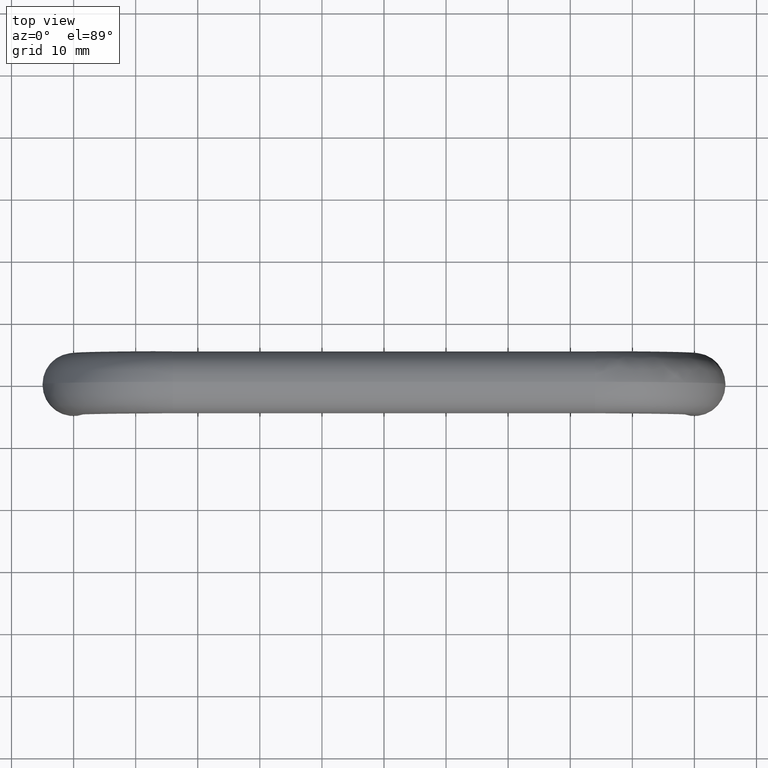
[diagram: clean part render]
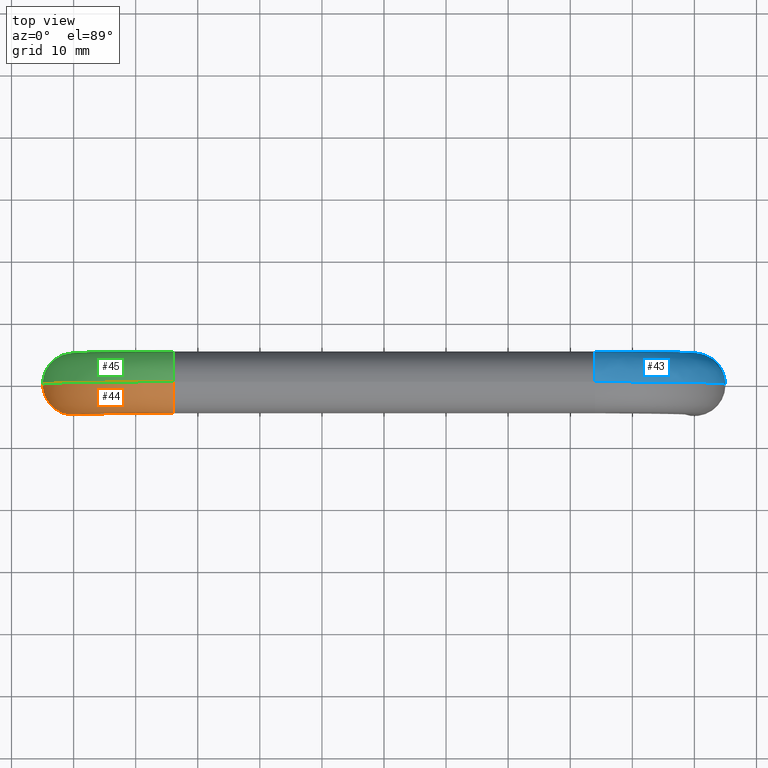
[diagram: same view with three faces highlighted in distinct colors, each labeled with its STEP entity id]
A machine part, top view with three faces highlighted in distinct colors.
Their STEP definitions:

[orange] entity #44 — the highlighted face is a freeform B-spline surface patch.
#44=ADVANCED_FACE('',(#106),#105,.T.);
#105=( BOUNDED_SURFACE() B_SPLINE_SURFACE( 3,3,((#417,#418,#419,#420,#421,#422,#423),(#424,#425,#426,#427,#428,#429,#430),(#431,#432,#433,#434,#435,#436,#437),(#438,#439,#440,#441,#442,#443,#444),(#445,#446,#447,#448,#449,#450,#451),(#452,#453,#454,#455,#456,#457,#458),(#459,#460,#461,#462,#463,#464,#465)), .UNSPECIFIED.,.F.,.F.,.F.) B_SPLINE_SURFACE_WITH_KNOTS((4,1,1,1,4),(4,1,1,1,4),(0.00000000000E+00,2.50000000000E-01,5.00000000000E-01,7.50000000000E-01,1.00000000000E+00),(0.00000000000E+00,2.49559115838E-01,5.00000000000E-01,7.50440884162E-01,1.00000000000E+00), .UNSPECIFIED. ) GEOMETRIC_REPRESENTATION_ITEM() RATIONAL_B_SPLINE_SURFACE(((1.00000000000E+00,1.00000000000E+00,1.00000000000E+00,1.00000000000E+00,1.00000000000E+00,1.00000000000E+00,1.00000000000E+00),(1.00000000000E+00,1.00000000000E+00,1.00000000000E+00,1.00000000000E+00,1.00000000000E+00,1.00000000000E+00,1.00000000000E+00),(1.00000000000E+00,1.00000000000E+00,1.00000000000E+00,1.00000000000E+00,1.00000000000E+00,1.00000000000E+00,1.00000000000E+00),(1.00000000000E+00,1.00000000000E+00,1.00000000000E+00,1.00000000000E+00,1.00000000000E+00,1.00000000000E+00,1.00000000000E+00),(1.00000000000E+00,1.00000000000E+00,1.00000000000E+00,1.00000000000E+00,1.00000000000E+00,1.00000000000E+00,1.00000000000E+00),(1.00000000000E+00,1.00000000000E+00,1.00000000000E+00,1.00000000000E+00,1.00000000000E+00,1.00000000000E+00,1.00000000000E+00),(1.00000000000E+00,1.00000000000E+00,1.00000000000E+00,1.00000000000E+00,1.00000000000E+00,1.00000000000E+00,1.00000000000E+00))) REPRESENTATION_ITEM('') SURFACE() );
#106=FACE_OUTER_BOUND('',#466,.T.);
#417=CARTESIAN_POINT('',(-3.39999999999E+01,-9.33703686742E-11,-4.70222971671E-10));
#418=CARTESIAN_POINT('',(-3.54373574487E+01,-9.33703686742E-11,-4.90093831615E-10));
#419=CARTESIAN_POINT('',(-3.83163256839E+01,-9.33703686742E-11,-5.71651279916E-01));
#420=CARTESIAN_POINT('',(-4.19814511429E+01,-9.33703686742E-11,-3.01854885760E+00));
#421=CARTESIAN_POINT('',(-4.44283487205E+01,-9.33703686742E-11,-6.68367431659E+00));
#422=CARTESIAN_POINT('',(-4.49999999998E+01,-9.33703686742E-11,-9.56264255178E+00));
#423=CARTESIAN_POINT('',(-4.49999999998E+01,-9.33703686742E-11,-1.10000000006E+01));
#424=CARTESIAN_POINT('',(-3.39999999999E+01,-1.30817095284E+00,-6.52270761371E-03));
#425=CARTESIAN_POINT('',(-3.54586265477E+01,-1.30817095284E+00,-6.52270763387E-03));
#426=CARTESIAN_POINT('',(-3.83034576745E+01,-1.30817095284E+00,-5.78626257499E-01));
#427=CARTESIAN_POINT('',(-4.19794981955E+01,-1.30817095284E+00,-3.02050180500E+00));
#428=CARTESIAN_POINT('',(-4.44213737429E+01,-1.30817095284E+00,-6.69654232604E+00));
#429=CARTESIAN_POINT('',(-4.49934772927E+01,-1.30817095284E+00,-9.54137345285E+00));
#430=CARTESIAN_POINT('',(-4.49934772927E+01,-1.30817095284E+00,-1.10000000006E+01));
#431=CARTESIAN_POINT('',(-3.39999999999E+01,-3.91898719537E+00,1.08115145070E+00));
#432=CARTESIAN_POINT('',(-3.56289311832E+01,-3.91898719537E+00,1.08115145067E+00));
#433=CARTESIAN_POINT('',(-3.87171220668E+01,-3.91898719538E+00,4.51515394468E-01));
#434=CARTESIAN_POINT('',(-4.27722409624E+01,-3.91898719538E+00,-2.22775903812E+00));
#435=CARTESIAN_POINT('',(-4.54515153948E+01,-3.91898719537E+00,-6.28287793375E+00));
#436=CARTESIAN_POINT('',(-4.60811514510E+01,-3.91898719537E+00,-9.37106881736E+00));
#437=CARTESIAN_POINT('',(-4.60811514510E+01,-3.91898719537E+00,-1.10000000006E+01));
#438=CARTESIAN_POINT('',(-3.40000000000E+01,-5.54551769882E+00,4.99999999953E+00));
#439=CARTESIAN_POINT('',(-3.60907017437E+01,-5.54551769882E+00,4.99999999950E+00));
#440=CARTESIAN_POINT('',(-4.02782919040E+01,-5.54551769882E+00,4.16850722942E+00));
#441=CARTESIAN_POINT('',(-4.56093834806E+01,-5.54551769882E+00,6.09383480059E-01));
#442=CARTESIAN_POINT('',(-4.91685072299E+01,-5.54551769882E+00,-4.72170809666E+00));
#443=CARTESIAN_POINT('',(-4.99999999998E+01,-5.54551769882E+00,-8.90929825697E+00));
#444=CARTESIAN_POINT('',(-4.99999999998E+01,-5.54551769882E+00,-1.10000000007E+01));
#445=CARTESIAN_POINT('',(-3.40000000001E+01,-3.91898719537E+00,8.91884854836E+00));
#446=CARTESIAN_POINT('',(-3.65524723043E+01,-3.91898719537E+00,8.91884854833E+00));
#447=CARTESIAN_POINT('',(-4.18394617412E+01,-3.91898719538E+00,7.88549906438E+00));
#448=CARTESIAN_POINT('',(-4.84465259989E+01,-3.91898719538E+00,3.44652599824E+00));
#449=CARTESIAN_POINT('',(-5.28854990649E+01,-3.91898719537E+00,-3.16053825958E+00));
#450=CARTESIAN_POINT('',(-5.39188485487E+01,-3.91898719537E+00,-8.44752769657E+00));
#451=CARTESIAN_POINT('',(-5.39188485486E+01,-3.91898719537E+00,-1.10000000008E+01));
#452=CARTESIAN_POINT('',(-3.40000000001E+01,-1.30817095284E+00,1.00065227067E+01));
#453=CARTESIAN_POINT('',(-3.67227769398E+01,-1.30817095284E+00,1.00065227066E+01));
#454=CARTESIAN_POINT('',(-4.22531261336E+01,-1.30817095284E+00,8.91564071635E+00));
#455=CARTESIAN_POINT('',(-4.92392687658E+01,-1.30817095284E+00,4.23926876512E+00));
#456=CARTESIAN_POINT('',(-5.39156407169E+01,-1.30817095284E+00,-2.74687386729E+00));
#457=CARTESIAN_POINT('',(-5.50065227070E+01,-1.30817095284E+00,-8.27722306109E+00));
#458=CARTESIAN_POINT('',(-5.50065227069E+01,-1.30817095284E+00,-1.10000000008E+01));
#459=CARTESIAN_POINT('',(-3.40000000001E+01,-9.33697563710E-11,9.99999999953E+00));
#460=CARTESIAN_POINT('',(-3.67440460388E+01,-9.33697563710E-11,9.99999999949E+00));
#461=CARTESIAN_POINT('',(-4.22402581241E+01,-9.33697563710E-11,8.90866573877E+00));
#462=CARTESIAN_POINT('',(-4.92373158184E+01,-9.33697563710E-11,4.23731581772E+00));
#463=CARTESIAN_POINT('',(-5.39086657393E+01,-9.33697563710E-11,-2.75974187674E+00));
#464=CARTESIAN_POINT('',(-5.49999999998E+01,-9.33697563710E-11,-8.25595396215E+00));
#465=CARTESIAN_POINT('',(-5.49999999998E+01,-9.33697563710E-11,-1.10000000008E+01));
#466=EDGE_LOOP('',(#646,#647,#648,#649));
#646=ORIENTED_EDGE('',*,*,#736,.F.);
#647=ORIENTED_EDGE('',*,*,#737,.F.);
#648=ORIENTED_EDGE('',*,*,#738,.F.);
#649=ORIENTED_EDGE('',*,*,#739,.T.);
#736=EDGE_CURVE('',#852,#853,#854,.T.);
#737=EDGE_CURVE('',#860,#852,#861,.T.);
#738=EDGE_CURVE('',#867,#860,#868,.T.);
#739=EDGE_CURVE('',#867,#853,#874,.T.);
#852=VERTEX_POINT('',#1135);
#853=VERTEX_POINT('',#1136);
#854=CIRCLE('',#1140,5.00000000000E+00);
#860=VERTEX_POINT('',#1141);
#861=CIRCLE('',#1145,1.10000000000E+01);
#867=VERTEX_POINT('',#1146);
#868=CIRCLE('',#1150,5.00000000000E+00);
#874=(BOUNDED_CURVE() B_SPLINE_CURVE(3,(#1151,#1152,#1153,#1154,#1155,#1156,#1157,#1158,#1159),.UNSPECIFIED.,.F.,.F.) B_SPLINE_CURVE_WITH_KNOTS((4,1,1,1,1,1,4),(3.14159265359E+00,3.41886853007E+00,3.64992617489E+00,3.92699081698E+00,4.20405545908E+00,4.43511310390E+00,4.71238898038E+00),.UNSPECIFIED.) CURVE() GEOMETRIC_REPRESENTATION_ITEM() RATIONAL_B_SPLINE_CURVE((1.00000000000E+00,1.00000000000E+00,1.00000000000E+00,1.00000000000E+00,1.00000000000E+00,1.00000000000E+00,1.00000000000E+00,1.00000000000E+00,1.00000000000E+00)) REPRESENTATION_ITEM('') );
#1135=CARTESIAN_POINT('',(-4.49999999998E+01,-9.33650194194E-11,-1.10000000006E+01));
#1136=CARTESIAN_POINT('',(-5.49999999998E+01,-9.33654195623E-11,-1.10000000008E+01));
#1137=CARTESIAN_POINT('',(-4.99999999998E+01,-9.33654195623E-11,-1.10000000007E+01));
#1138=DIRECTION('',(1.38243194669E-11,3.88202274091E-39,-1.00000000000E+00));
#1139=DIRECTION('',(-1.00000000000E+00,-8.00285799997E-17,-1.38243194669E-11));
#1140=AXIS2_PLACEMENT_3D('',#1137,#1138,#1139);
#1141=CARTESIAN_POINT('',(-3.39999999999E+01,-9.33697563710E-11,-4.70225636207E-10));
#1142=CARTESIAN_POINT('',(-3.39999999998E+01,-9.33703686742E-11,-1.10000000005E+01));
#1143=DIRECTION('',(-3.24869965086E-38,-1.00000000000E+00,2.34994492202E-27));
#1144=DIRECTION('',(1.35287336888E-11,-2.34994492202E-27,-1.00000000000E+00));
#1145=AXIS2_PLACEMENT_3D('',#1142,#1143,#1144);
#1146=CARTESIAN_POINT('',(-3.40000000001E+01,-9.33694603115E-11,9.99999999953E+00));
#1147=CARTESIAN_POINT('',(-3.40000000000E+01,-9.33697563710E-11,4.99999999953E+00));
#1148=DIRECTION('',(1.00000000000E+00,2.87219101558E-39,1.38243194669E-11));
#1149=DIRECTION('',(1.38243194669E-11,-5.92118999992E-17,-1.00000000000E+00));
#1150=AXIS2_PLACEMENT_3D('',#1147,#1148,#1149);
#1151=CARTESIAN_POINT('',(-3.40000000000E+01,-9.33697563710E-11,9.99999999953E+00));
#1152=CARTESIAN_POINT('',(-3.59365056684E+01,-9.33697563710E-11,1.00006883906E+01));
#1153=CARTESIAN_POINT('',(-3.94921764615E+01,-9.33697563710E-11,9.50466741249E+00));
#1154=CARTESIAN_POINT('',(-4.46060632109E+01,-9.33697563710E-11,7.38852365608E+00));
#1155=CARTESIAN_POINT('',(-4.90411501763E+01,-9.33697563710E-11,4.04115017577E+00));
#1156=CARTESIAN_POINT('',(-5.23885236566E+01,-9.33697563710E-11,-3.93936789793E-01));
#1157=CARTESIAN_POINT('',(-5.45046674129E+01,-9.33697563710E-11,-5.50782353923E+00));
#1158=CARTESIAN_POINT('',(-5.50006883909E+01,-9.33697563710E-11,-9.06349433235E+00));
#1159=CARTESIAN_POINT('',(-5.49999999998E+01,-9.33697563710E-11,-1.10000000007E+01));

[blue] entity #43 — the highlighted face is a freeform B-spline surface patch.
#43=ADVANCED_FACE('',(#96),#95,.T.);
#95=( BOUNDED_SURFACE() B_SPLINE_SURFACE( 3,3,((#367,#368,#369,#370,#371,#372,#373),(#374,#375,#376,#377,#378,#379,#380),(#381,#382,#383,#384,#385,#386,#387),(#388,#389,#390,#391,#392,#393,#394),(#395,#396,#397,#398,#399,#400,#401),(#402,#403,#404,#405,#406,#407,#408),(#409,#410,#411,#412,#413,#414,#415)), .UNSPECIFIED.,.F.,.F.,.F.) B_SPLINE_SURFACE_WITH_KNOTS((4,1,1,1,4),(4,1,1,1,4),(0.00000000000E+00,2.50000000000E-01,5.00000000000E-01,7.50000000000E-01,1.00000000000E+00),(0.00000000000E+00,2.49559115838E-01,5.00000000000E-01,7.50440884162E-01,1.00000000000E+00), .UNSPECIFIED. ) GEOMETRIC_REPRESENTATION_ITEM() RATIONAL_B_SPLINE_SURFACE(((1.00000000000E+00,1.00000000000E+00,1.00000000000E+00,1.00000000000E+00,1.00000000000E+00,1.00000000000E+00,1.00000000000E+00),(1.00000000000E+00,1.00000000000E+00,1.00000000000E+00,1.00000000000E+00,1.00000000000E+00,1.00000000000E+00,1.00000000000E+00),(1.00000000000E+00,1.00000000000E+00,1.00000000000E+00,1.00000000000E+00,1.00000000000E+00,1.00000000000E+00,1.00000000000E+00),(1.00000000000E+00,1.00000000000E+00,1.00000000000E+00,1.00000000000E+00,1.00000000000E+00,1.00000000000E+00,1.00000000000E+00),(1.00000000000E+00,1.00000000000E+00,1.00000000000E+00,1.00000000000E+00,1.00000000000E+00,1.00000000000E+00,1.00000000000E+00),(1.00000000000E+00,1.00000000000E+00,1.00000000000E+00,1.00000000000E+00,1.00000000000E+00,1.00000000000E+00,1.00000000000E+00),(1.00000000000E+00,1.00000000000E+00,1.00000000000E+00,1.00000000000E+00,1.00000000000E+00,1.00000000000E+00,1.00000000000E+00))) REPRESENTATION_ITEM('') SURFACE() );
#96=FACE_OUTER_BOUND('',#416,.T.);
#367=CARTESIAN_POINT('',(5.49999999999E+01,-9.33697563710E-11,-1.10000000000E+01));
#368=CARTESIAN_POINT('',(5.49999999999E+01,-9.33697563710E-11,-8.25595396135E+00));
#369=CARTESIAN_POINT('',(5.39086657393E+01,-9.33697563710E-11,-2.75974187597E+00));
#370=CARTESIAN_POINT('',(4.92373158183E+01,-9.33697563710E-11,4.23731581841E+00));
#371=CARTESIAN_POINT('',(4.22402581239E+01,-9.33697563710E-11,8.90866573935E+00));
#372=CARTESIAN_POINT('',(3.67440460385E+01,-9.33697563710E-11,1.00000000000E+01));
#373=CARTESIAN_POINT('',(3.39999999999E+01,-9.33697563710E-11,1.00000000000E+01));
#374=CARTESIAN_POINT('',(5.50065227070E+01,1.30817095265E+00,-1.10000000000E+01));
#375=CARTESIAN_POINT('',(5.50065227070E+01,1.30817095265E+00,-8.27722306029E+00));
#376=CARTESIAN_POINT('',(5.39156407168E+01,1.30817095265E+00,-2.74687386652E+00));
#377=CARTESIAN_POINT('',(4.92392687657E+01,1.30817095265E+00,4.23926876581E+00));
#378=CARTESIAN_POINT('',(4.22531261334E+01,1.30817095265E+00,8.91564071694E+00));
#379=CARTESIAN_POINT('',(3.67227769396E+01,1.30817095265E+00,1.00065227071E+01));
#380=CARTESIAN_POINT('',(3.39999999999E+01,1.30817095265E+00,1.00065227071E+01));
#381=CARTESIAN_POINT('',(5.39188485487E+01,3.91898719519E+00,-1.10000000000E+01));
#382=CARTESIAN_POINT('',(5.39188485487E+01,3.91898719519E+00,-8.44752769579E+00));
#383=CARTESIAN_POINT('',(5.28854990649E+01,3.91898719519E+00,-3.16053825882E+00));
#384=CARTESIAN_POINT('',(4.84465259988E+01,3.91898719519E+00,3.44652599892E+00));
#385=CARTESIAN_POINT('',(4.18394617411E+01,3.91898719519E+00,7.88549906497E+00));
#386=CARTESIAN_POINT('',(3.65524723041E+01,3.91898719519E+00,8.91884854883E+00));
#387=CARTESIAN_POINT('',(3.39999999999E+01,3.91898719519E+00,8.91884854883E+00));
#388=CARTESIAN_POINT('',(4.99999999999E+01,5.54551769865E+00,-1.10000000000E+01));
#389=CARTESIAN_POINT('',(4.99999999999E+01,5.54551769865E+00,-8.90929825627E+00));
#390=CARTESIAN_POINT('',(4.91685072299E+01,5.54551769865E+00,-4.72170809598E+00));
#391=CARTESIAN_POINT('',(4.56093834806E+01,5.54551769864E+00,6.09383480694E-01));
#392=CARTESIAN_POINT('',(4.02782919039E+01,5.54551769864E+00,4.16850722998E+00));
#393=CARTESIAN_POINT('',(3.60907017436E+01,5.54551769864E+00,5.00000000000E+00));
#394=CARTESIAN_POINT('',(3.39999999999E+01,5.54551769864E+00,5.00000000000E+00));
#395=CARTESIAN_POINT('',(4.60811514511E+01,3.91898719519E+00,-1.10000000000E+01));
#396=CARTESIAN_POINT('',(4.60811514511E+01,3.91898719519E+00,-9.37106881674E+00));
#397=CARTESIAN_POINT('',(4.54515153949E+01,3.91898719519E+00,-6.28287793313E+00));
#398=CARTESIAN_POINT('',(4.27722409624E+01,3.91898719519E+00,-2.22775903753E+00));
#399=CARTESIAN_POINT('',(3.87171220668E+01,3.91898719519E+00,4.51515394998E-01));
#400=CARTESIAN_POINT('',(3.56289311832E+01,3.91898719519E+00,1.08115145117E+00));
#401=CARTESIAN_POINT('',(3.39999999999E+01,3.91898719519E+00,1.08115145116E+00));
#402=CARTESIAN_POINT('',(4.49934772928E+01,1.30817095265E+00,-1.10000000000E+01));
#403=CARTESIAN_POINT('',(4.49934772928E+01,1.30817095265E+00,-9.54137345225E+00));
#404=CARTESIAN_POINT('',(4.44213737429E+01,1.30817095265E+00,-6.69654232543E+00));
#405=CARTESIAN_POINT('',(4.19794981955E+01,1.30817095265E+00,-3.02050180442E+00));
#406=CARTESIAN_POINT('',(3.83034576745E+01,1.30817095265E+00,-5.78626256968E-01));
#407=CARTESIAN_POINT('',(3.54586265477E+01,1.30817095265E+00,-6.52270714344E-03));
#408=CARTESIAN_POINT('',(3.39999999999E+01,1.30817095265E+00,-6.52270714345E-03));
#409=CARTESIAN_POINT('',(4.49999999999E+01,-9.33691440678E-11,-1.10000000000E+01));
#410=CARTESIAN_POINT('',(4.49999999999E+01,-9.33691440678E-11,-9.56264255118E+00));
#411=CARTESIAN_POINT('',(4.44283487205E+01,-9.33691440678E-11,-6.68367431598E+00));
#412=CARTESIAN_POINT('',(4.19814511429E+01,-9.33691440678E-11,-3.01854885702E+00));
#413=CARTESIAN_POINT('',(3.83163256839E+01,-9.33691440678E-11,-5.71651279386E-01));
#414=CARTESIAN_POINT('',(3.54373574487E+01,-9.33691440678E-11,-1.98951966013E-13));
#415=CARTESIAN_POINT('',(3.39999999999E+01,-9.33691440678E-11,-1.98951966013E-13));
#416=EDGE_LOOP('',(#642,#643,#644,#645));
#642=ORIENTED_EDGE('',*,*,#734,.T.);
#643=ORIENTED_EDGE('',*,*,#725,.T.);
#644=ORIENTED_EDGE('',*,*,#735,.T.);
#645=ORIENTED_EDGE('',*,*,#727,.F.);
#725=EDGE_CURVE('',#778,#771,#779,.T.);
#727=EDGE_CURVE('',#785,#770,#792,.T.);
#734=EDGE_CURVE('',#785,#778,#840,.T.);
#735=EDGE_CURVE('',#771,#770,#846,.T.);
#770=VERTEX_POINT('',#1072);
#771=VERTEX_POINT('',#1073);
#778=VERTEX_POINT('',#1078);
#779=CIRCLE('',#1082,1.10000000000E+01);
#785=VERTEX_POINT('',#1083);
#792=(BOUNDED_CURVE() B_SPLINE_CURVE(3,(#1088,#1089,#1090,#1091,#1092,#1093,#1094,#1095,#1096),.UNSPECIFIED.,.F.,.F.) B_SPLINE_CURVE_WITH_KNOTS((4,1,1,1,1,1,4),(1.57079632680E+00,1.84807220328E+00,2.07912984810E+00,2.35619449020E+00,2.63325913230E+00,2.86431677711E+00,3.14159265360E+00),.UNSPECIFIED.) CURVE() GEOMETRIC_REPRESENTATION_ITEM() RATIONAL_B_SPLINE_CURVE((1.00000000000E+00,1.00000000000E+00,1.00000000000E+00,1.00000000000E+00,1.00000000000E+00,1.00000000000E+00,1.00000000000E+00,1.00000000000E+00,1.00000000000E+00)) REPRESENTATION_ITEM('') );
#840=CIRCLE('',#1130,5.00000000000E+00);
#846=CIRCLE('',#1134,5.00000000000E+00);
#1072=CARTESIAN_POINT('',(3.39999999999E+01,-9.33694603115E-11,1.00000000000E+01));
#1073=CARTESIAN_POINT('',(3.39999999999E+01,-9.33697563710E-11,-1.98951966013E-13));
#1078=CARTESIAN_POINT('',(4.49999999999E+01,-9.33650194194E-11,-1.10000000000E+01));
#1079=CARTESIAN_POINT('',(3.39999999999E+01,-9.33703686742E-11,-1.10000000000E+01));
#1080=DIRECTION('',(2.34994492203E-27,-1.00000000000E+00,6.52533137482E-28));
#1081=DIRECTION('',(-1.00000000000E+00,-2.34994492203E-27,2.55795384874E-13));
#1082=AXIS2_PLACEMENT_3D('',#1079,#1080,#1081);
#1083=CARTESIAN_POINT('',(5.49999999999E+01,-9.33654195623E-11,-1.10000000000E+01));
#1088=CARTESIAN_POINT('',(5.49999999999E+01,-9.33697563710E-11,-1.10000000000E+01));
#1089=CARTESIAN_POINT('',(5.50006883910E+01,-9.33697563710E-11,-9.06349433158E+00));
#1090=CARTESIAN_POINT('',(5.45046674129E+01,-9.33697563710E-11,-5.50782353845E+00));
#1091=CARTESIAN_POINT('',(5.23885236565E+01,-9.33697563710E-11,-3.93936789027E-01));
#1092=CARTESIAN_POINT('',(4.90411501762E+01,-9.33697563710E-11,4.04115017650E+00));
#1093=CARTESIAN_POINT('',(4.46060632107E+01,-9.33697563710E-11,7.38852365674E+00));
#1094=CARTESIAN_POINT('',(3.94921764612E+01,-9.33697563710E-11,9.50466741306E+00));
#1095=CARTESIAN_POINT('',(3.59365056681E+01,-9.33697563710E-11,1.00006883911E+01));
#1096=CARTESIAN_POINT('',(3.39999999998E+01,-9.33697563710E-11,1.00000000000E+01));
#1127=CARTESIAN_POINT('',(4.99999999999E+01,-9.33654195623E-11,-1.10000000000E+01));
#1128=DIRECTION('',(0.00000000000E+00,-0.00000000000E+00,1.00000000000E+00));
#1129=DIRECTION('',(-1.00000000000E+00,-0.00000000000E+00,-0.00000000000E+00));
#1130=AXIS2_PLACEMENT_3D('',#1127,#1128,#1129);
#1131=CARTESIAN_POINT('',(3.39999999999E+01,-9.33697563710E-11,5.00000000000E+00));
#1132=DIRECTION('',(1.00000000000E+00,0.00000000000E+00,0.00000000000E+00));
#1133=DIRECTION('',(-0.00000000000E+00,-0.00000000000E+00,1.00000000000E+00));
#1134=AXIS2_PLACEMENT_3D('',#1131,#1132,#1133);

[green] entity #45 — the highlighted face is a freeform B-spline surface patch.
#45=ADVANCED_FACE('',(#116),#115,.T.);
#115=( BOUNDED_SURFACE() B_SPLINE_SURFACE( 3,3,((#467,#468,#469,#470,#471,#472,#473),(#474,#475,#476,#477,#478,#479,#480),(#481,#482,#483,#484,#485,#486,#487),(#488,#489,#490,#491,#492,#493,#494),(#495,#496,#497,#498,#499,#500,#501),(#502,#503,#504,#505,#506,#507,#508),(#509,#510,#511,#512,#513,#514,#515)), .UNSPECIFIED.,.F.,.F.,.F.) B_SPLINE_SURFACE_WITH_KNOTS((4,1,1,1,4),(4,1,1,1,4),(0.00000000000E+00,2.50000000000E-01,5.00000000000E-01,7.50000000000E-01,1.00000000000E+00),(0.00000000000E+00,2.49559115838E-01,5.00000000000E-01,7.50440884162E-01,1.00000000000E+00), .UNSPECIFIED. ) GEOMETRIC_REPRESENTATION_ITEM() RATIONAL_B_SPLINE_SURFACE(((1.00000000000E+00,1.00000000000E+00,1.00000000000E+00,1.00000000000E+00,1.00000000000E+00,1.00000000000E+00,1.00000000000E+00),(1.00000000000E+00,1.00000000000E+00,1.00000000000E+00,1.00000000000E+00,1.00000000000E+00,1.00000000000E+00,1.00000000000E+00),(1.00000000000E+00,1.00000000000E+00,1.00000000000E+00,1.00000000000E+00,1.00000000000E+00,1.00000000000E+00,1.00000000000E+00),(1.00000000000E+00,1.00000000000E+00,1.00000000000E+00,1.00000000000E+00,1.00000000000E+00,1.00000000000E+00,1.00000000000E+00),(1.00000000000E+00,1.00000000000E+00,1.00000000000E+00,1.00000000000E+00,1.00000000000E+00,1.00000000000E+00,1.00000000000E+00),(1.00000000000E+00,1.00000000000E+00,1.00000000000E+00,1.00000000000E+00,1.00000000000E+00,1.00000000000E+00,1.00000000000E+00),(1.00000000000E+00,1.00000000000E+00,1.00000000000E+00,1.00000000000E+00,1.00000000000E+00,1.00000000000E+00,1.00000000000E+00))) REPRESENTATION_ITEM('') SURFACE() );
#116=FACE_OUTER_BOUND('',#516,.T.);
#467=CARTESIAN_POINT('',(-3.40000000001E+01,-9.33697563710E-11,9.99999999953E+00));
#468=CARTESIAN_POINT('',(-3.67440460388E+01,-9.33697563710E-11,9.99999999949E+00));
#469=CARTESIAN_POINT('',(-4.22402581241E+01,-9.33697563710E-11,8.90866573877E+00));
#470=CARTESIAN_POINT('',(-4.92373158184E+01,-9.33697563710E-11,4.23731581772E+00));
#471=CARTESIAN_POINT('',(-5.39086657393E+01,-9.33697563710E-11,-2.75974187674E+00));
#472=CARTESIAN_POINT('',(-5.49999999998E+01,-9.33697563710E-11,-8.25595396215E+00));
#473=CARTESIAN_POINT('',(-5.49999999998E+01,-9.33697563710E-11,-1.10000000008E+01));
#474=CARTESIAN_POINT('',(-3.40000000001E+01,1.30817095265E+00,1.00065227067E+01));
#475=CARTESIAN_POINT('',(-3.67227769398E+01,1.30817095265E+00,1.00065227066E+01));
#476=CARTESIAN_POINT('',(-4.22531261336E+01,1.30817095265E+00,8.91564071635E+00));
#477=CARTESIAN_POINT('',(-4.92392687658E+01,1.30817095265E+00,4.23926876512E+00));
#478=CARTESIAN_POINT('',(-5.39156407169E+01,1.30817095265E+00,-2.74687386729E+00));
#479=CARTESIAN_POINT('',(-5.50065227070E+01,1.30817095265E+00,-8.27722306109E+00));
#480=CARTESIAN_POINT('',(-5.50065227069E+01,1.30817095265E+00,-1.10000000008E+01));
#481=CARTESIAN_POINT('',(-3.40000000001E+01,3.91898719519E+00,8.91884854836E+00));
#482=CARTESIAN_POINT('',(-3.65524723043E+01,3.91898719519E+00,8.91884854833E+00));
#483=CARTESIAN_POINT('',(-4.18394617412E+01,3.91898719519E+00,7.88549906439E+00));
#484=CARTESIAN_POINT('',(-4.84465259989E+01,3.91898719519E+00,3.44652599824E+00));
#485=CARTESIAN_POINT('',(-5.28854990649E+01,3.91898719519E+00,-3.16053825958E+00));
#486=CARTESIAN_POINT('',(-5.39188485487E+01,3.91898719519E+00,-8.44752769657E+00));
#487=CARTESIAN_POINT('',(-5.39188485486E+01,3.91898719519E+00,-1.10000000008E+01));
#488=CARTESIAN_POINT('',(-3.40000000000E+01,5.54551769864E+00,4.99999999953E+00));
#489=CARTESIAN_POINT('',(-3.60907017437E+01,5.54551769864E+00,4.99999999950E+00));
#490=CARTESIAN_POINT('',(-4.02782919040E+01,5.54551769864E+00,4.16850722942E+00));
#491=CARTESIAN_POINT('',(-4.56093834806E+01,5.54551769864E+00,6.09383480059E-01));
#492=CARTESIAN_POINT('',(-4.91685072299E+01,5.54551769864E+00,-4.72170809666E+00));
#493=CARTESIAN_POINT('',(-4.99999999998E+01,5.54551769864E+00,-8.90929825697E+00));
#494=CARTESIAN_POINT('',(-4.99999999998E+01,5.54551769864E+00,-1.10000000007E+01));
#495=CARTESIAN_POINT('',(-3.39999999999E+01,3.91898719519E+00,1.08115145069E+00));
#496=CARTESIAN_POINT('',(-3.56289311832E+01,3.91898719519E+00,1.08115145067E+00));
#497=CARTESIAN_POINT('',(-3.87171220668E+01,3.91898719519E+00,4.51515394466E-01));
#498=CARTESIAN_POINT('',(-4.27722409624E+01,3.91898719519E+00,-2.22775903812E+00));
#499=CARTESIAN_POINT('',(-4.54515153948E+01,3.91898719519E+00,-6.28287793375E+00));
#500=CARTESIAN_POINT('',(-4.60811514510E+01,3.91898719519E+00,-9.37106881736E+00));
#501=CARTESIAN_POINT('',(-4.60811514510E+01,3.91898719519E+00,-1.10000000006E+01));
#502=CARTESIAN_POINT('',(-3.39999999999E+01,1.30817095265E+00,-6.52270761347E-03));
#503=CARTESIAN_POINT('',(-3.54586265477E+01,1.30817095265E+00,-6.52270763362E-03));
#504=CARTESIAN_POINT('',(-3.83034576745E+01,1.30817095265E+00,-5.78626257498E-01));
#505=CARTESIAN_POINT('',(-4.19794981955E+01,1.30817095265E+00,-3.02050180500E+00));
#506=CARTESIAN_POINT('',(-4.44213737429E+01,1.30817095265E+00,-6.69654232604E+00));
#507=CARTESIAN_POINT('',(-4.49934772927E+01,1.30817095265E+00,-9.54137345285E+00));
#508=CARTESIAN_POINT('',(-4.49934772927E+01,1.30817095265E+00,-1.10000000006E+01));
#509=CARTESIAN_POINT('',(-3.39999999999E+01,-9.33691440678E-11,-4.70222971671E-10));
#510=CARTESIAN_POINT('',(-3.54373574487E+01,-9.33691440678E-11,-4.90093831615E-10));
#511=CARTESIAN_POINT('',(-3.83163256839E+01,-9.33691440678E-11,-5.71651279916E-01));
#512=CARTESIAN_POINT('',(-4.19814511429E+01,-9.33691440678E-11,-3.01854885760E+00));
#513=CARTESIAN_POINT('',(-4.44283487205E+01,-9.33691440678E-11,-6.68367431659E+00));
#514=CARTESIAN_POINT('',(-4.49999999998E+01,-9.33691440678E-11,-9.56264255178E+00));
#515=CARTESIAN_POINT('',(-4.49999999998E+01,-9.33691440678E-11,-1.10000000006E+01));
#516=EDGE_LOOP('',(#650,#651,#652,#653));
#650=ORIENTED_EDGE('',*,*,#740,.F.);
#651=ORIENTED_EDGE('',*,*,#737,.T.);
#652=ORIENTED_EDGE('',*,*,#741,.F.);
#653=ORIENTED_EDGE('',*,*,#739,.F.);
#737=EDGE_CURVE('',#860,#852,#861,.T.);
#739=EDGE_CURVE('',#867,#853,#874,.T.);
#740=EDGE_CURVE('',#860,#867,#880,.T.);
#741=EDGE_CURVE('',#853,#852,#886,.T.);
#852=VERTEX_POINT('',#1135);
#853=VERTEX_POINT('',#1136);
#860=VERTEX_POINT('',#1141);
#861=CIRCLE('',#1145,1.10000000000E+01);
#867=VERTEX_POINT('',#1146);
#874=(BOUNDED_CURVE() B_SPLINE_CURVE(3,(#1151,#1152,#1153,#1154,#1155,#1156,#1157,#1158,#1159),.UNSPECIFIED.,.F.,.F.) B_SPLINE_CURVE_WITH_KNOTS((4,1,1,1,1,1,4),(3.14159265359E+00,3.41886853007E+00,3.64992617489E+00,3.92699081698E+00,4.20405545908E+00,4.43511310390E+00,4.71238898038E+00),.UNSPECIFIED.) CURVE() GEOMETRIC_REPRESENTATION_ITEM() RATIONAL_B_SPLINE_CURVE((1.00000000000E+00,1.00000000000E+00,1.00000000000E+00,1.00000000000E+00,1.00000000000E+00,1.00000000000E+00,1.00000000000E+00,1.00000000000E+00,1.00000000000E+00)) REPRESENTATION_ITEM('') );
#880=CIRCLE('',#1163,5.00000000000E+00);
#886=CIRCLE('',#1167,5.00000000000E+00);
#1135=CARTESIAN_POINT('',(-4.49999999998E+01,-9.33650194194E-11,-1.10000000006E+01));
#1136=CARTESIAN_POINT('',(-5.49999999998E+01,-9.33654195623E-11,-1.10000000008E+01));
#1141=CARTESIAN_POINT('',(-3.39999999999E+01,-9.33697563710E-11,-4.70225636207E-10));
#1142=CARTESIAN_POINT('',(-3.39999999998E+01,-9.33703686742E-11,-1.10000000005E+01));
#1143=DIRECTION('',(-3.24869965086E-38,-1.00000000000E+00,2.34994492202E-27));
#1144=DIRECTION('',(1.35287336888E-11,-2.34994492202E-27,-1.00000000000E+00));
#1145=AXIS2_PLACEMENT_3D('',#1142,#1143,#1144);
#1146=CARTESIAN_POINT('',(-3.40000000001E+01,-9.33694603115E-11,9.99999999953E+00));
#1151=CARTESIAN_POINT('',(-3.40000000000E+01,-9.33697563710E-11,9.99999999953E+00));
#1152=CARTESIAN_POINT('',(-3.59365056684E+01,-9.33697563710E-11,1.00006883906E+01));
#1153=CARTESIAN_POINT('',(-3.94921764615E+01,-9.33697563710E-11,9.50466741249E+00));
#1154=CARTESIAN_POINT('',(-4.46060632109E+01,-9.33697563710E-11,7.38852365608E+00));
#1155=CARTESIAN_POINT('',(-4.90411501763E+01,-9.33697563710E-11,4.04115017577E+00));
#1156=CARTESIAN_POINT('',(-5.23885236566E+01,-9.33697563710E-11,-3.93936789793E-01));
#1157=CARTESIAN_POINT('',(-5.45046674129E+01,-9.33697563710E-11,-5.50782353923E+00));
#1158=CARTESIAN_POINT('',(-5.50006883909E+01,-9.33697563710E-11,-9.06349433235E+00));
#1159=CARTESIAN_POINT('',(-5.49999999998E+01,-9.33697563710E-11,-1.10000000007E+01));
#1160=CARTESIAN_POINT('',(-3.40000000000E+01,-9.33697563710E-11,4.99999999953E+00));
#1161=DIRECTION('',(1.00000000000E+00,0.00000000000E+00,1.38243194669E-11));
#1162=DIRECTION('',(-1.38243194669E-11,-0.00000000000E+00,1.00000000000E+00));
#1163=AXIS2_PLACEMENT_3D('',#1160,#1161,#1162);
#1164=CARTESIAN_POINT('',(-4.99999999998E+01,-9.33654195623E-11,-1.10000000007E+01));
#1165=DIRECTION('',(1.38243194669E-11,0.00000000000E+00,-1.00000000000E+00));
#1166=DIRECTION('',(1.00000000000E+00,-0.00000000000E+00,1.38243194669E-11));
#1167=AXIS2_PLACEMENT_3D('',#1164,#1165,#1166);